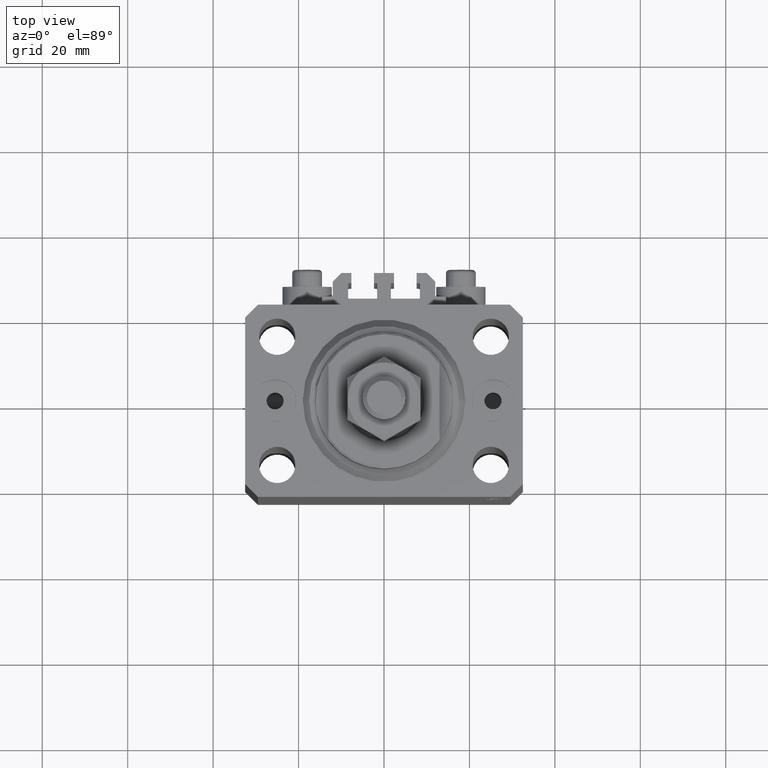
[diagram: clean part render]
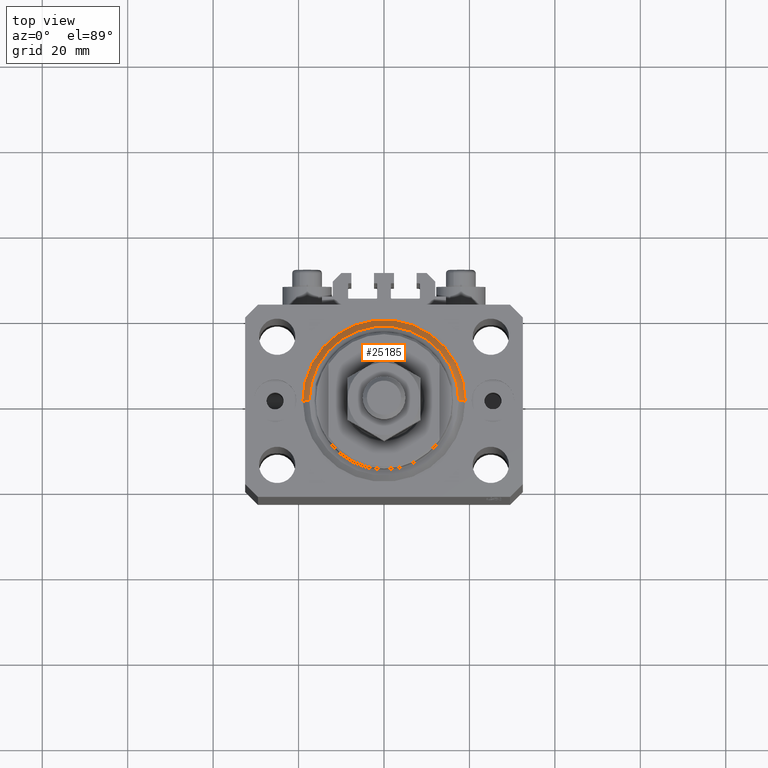
[diagram: same view with one face highlighted and labeled with its STEP entity id]
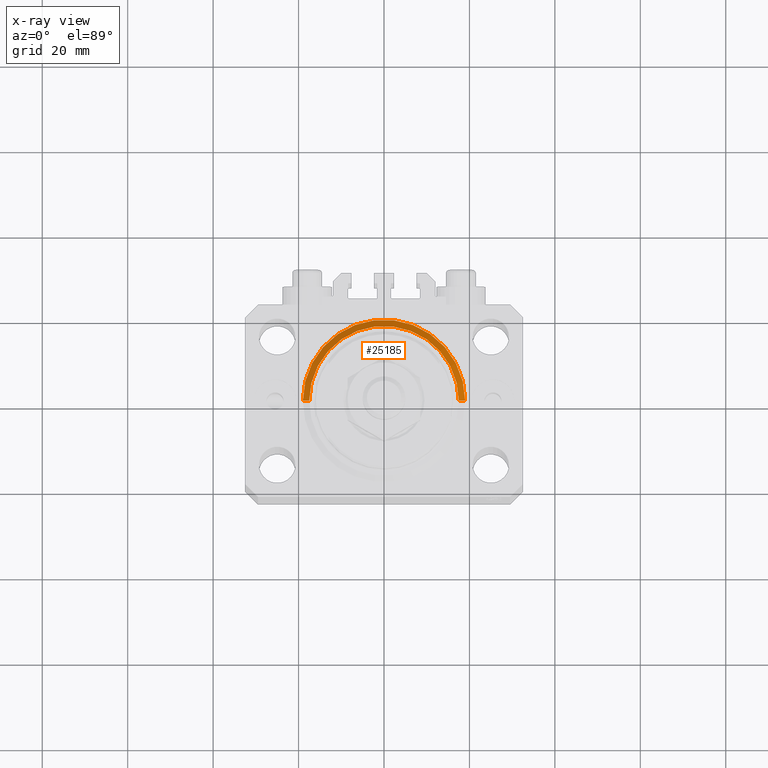
[diagram: x-ray of the same camera — body ghosted, the highlighted face saturated]
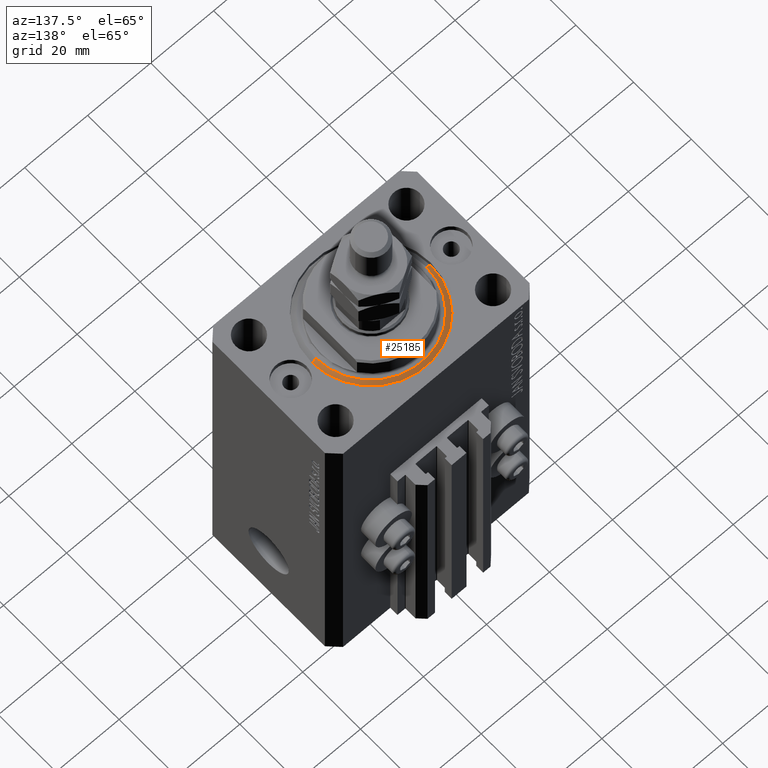
[diagram: same view with one face highlighted and labeled with its STEP entity id]
A machine part, top view. The second image highlights one B-rep face of the part: STEP entity #25185.
The next image is the same camera in x-ray: the body ghosted, the highlighted face saturated — about 0% of this face is hidden behind the body in this view.
A second angle (auxiliary view) of the same face is appended — the face is thin or edge-on in the first view.
In plain terms, the highlighted conical surface has half-angle 45 deg.
Its self-contained STEP definition (entity closure, byte-faithful):
#326 = VECTOR ( 'NONE', #10832, 1000.000000000000000 ) ;
#888 = CARTESIAN_POINT ( 'NONE',  ( 19.00000000000000000, 2.326828918379970970E-15, 1.500000000000001332 ) ) ;
#2772 = CIRCLE ( 'NONE', #35814, 19.00000000000000000 ) ;
#3706 = DIRECTION ( 'NONE',  ( -0.000000000000000000, -0.000000000000000000, 1.000000000000000000 ) ) ;
#4856 = AXIS2_PLACEMENT_3D ( 'NONE', #8139, #18989, #4918 ) ;
#4918 = DIRECTION ( 'NONE',  ( 1.000000000000000000, 0.000000000000000000, 0.000000000000000000 ) ) ;
#6474 = CONICAL_SURFACE ( 'NONE', #37220, 19.00000000000000000, 0.7853981633974492782 ) ;
#8139 = CARTESIAN_POINT ( 'NONE',  ( 0.000000000000000000, 0.000000000000000000, 0.000000000000000000 ) ) ;
#9676 = VERTEX_POINT ( 'NONE', #36853 ) ;
#10383 = DIRECTION ( 'NONE',  ( 1.000000000000000000, 0.000000000000000000, 0.000000000000000000 ) ) ;
#10587 = CARTESIAN_POINT ( 'NONE',  ( -19.00000000000000000, 2.326828918379970970E-15, 1.500000000000001332 ) ) ;
#10819 = ORIENTED_EDGE ( 'NONE', *, *, #48685, .F. ) ;
#10832 = DIRECTION ( 'NONE',  ( -0.7071067811865483499, 8.659560562354942719E-17, 0.7071067811865467956 ) ) ;
#18738 = DIRECTION ( 'NONE',  ( 1.000000000000000000, 0.000000000000000000, 0.000000000000000000 ) ) ;
#18989 = DIRECTION ( 'NONE',  ( -0.000000000000000000, -0.000000000000000000, -1.000000000000000000 ) ) ;
#19971 = ORIENTED_EDGE ( 'NONE', *, *, #30851, .F. ) ;
#20635 = ORIENTED_EDGE ( 'NONE', *, *, #48799, .F. ) ;
#21193 = CARTESIAN_POINT ( 'NONE',  ( -17.49999999999999645, 2.234980408443919215E-15, 0.000000000000000000 ) ) ;
#23688 = VERTEX_POINT ( 'NONE', #888 ) ;
#24716 = ORIENTED_EDGE ( 'NONE', *, *, #29157, .T. ) ;
#25185 = ADVANCED_FACE ( 'NONE', ( #37497 ), #6474, .T. ) ;
#25406 = VERTEX_POINT ( 'NONE', #21193 ) ;
#26643 = DIRECTION ( 'NONE',  ( 0.7071067811865483499, 0.000000000000000000, 0.7071067811865467956 ) ) ;
#27711 = VECTOR ( 'NONE', #26643, 1000.000000000000000 ) ;
#28838 = LINE ( 'NONE', #10587, #326 ) ;
#29119 = CARTESIAN_POINT ( 'NONE',  ( 0.000000000000000000, 0.000000000000000000, 1.500000000000001332 ) ) ;
#29157 = EDGE_CURVE ( 'NONE', #25406, #34570, #28838, .T. ) ;
#29243 = CARTESIAN_POINT ( 'NONE',  ( -19.00000000000000000, 0.000000000000000000, 1.500000000000001332 ) ) ;
#30835 = CIRCLE ( 'NONE', #4856, 17.49999999999999645 ) ;
#30851 = EDGE_CURVE ( 'NONE', #23688, #34570, #2772, .T. ) ;
#31756 = EDGE_LOOP ( 'NONE', ( #20635, #24716, #19971, #10819 ) ) ;
#34512 = LINE ( 'NONE', #38219, #27711 ) ;
#34570 = VERTEX_POINT ( 'NONE', #29243 ) ;
#35814 = AXIS2_PLACEMENT_3D ( 'NONE', #29119, #44161, #10383 ) ;
#36853 = CARTESIAN_POINT ( 'NONE',  ( 17.49999999999999645, 0.000000000000000000, 0.000000000000000000 ) ) ;
#37220 = AXIS2_PLACEMENT_3D ( 'NONE', #41186, #3706, #18738 ) ;
#37497 = FACE_OUTER_BOUND ( 'NONE', #31756, .T. ) ;
#38219 = CARTESIAN_POINT ( 'NONE',  ( 19.00000000000000000, 0.000000000000000000, 1.500000000000001332 ) ) ;
#41186 = CARTESIAN_POINT ( 'NONE',  ( 0.000000000000000000, 0.000000000000000000, 1.500000000000001332 ) ) ;
#44161 = DIRECTION ( 'NONE',  ( -0.000000000000000000, -0.000000000000000000, 1.000000000000000000 ) ) ;
#48685 = EDGE_CURVE ( 'NONE', #9676, #23688, #34512, .T. ) ;
#48799 = EDGE_CURVE ( 'NONE', #25406, #9676, #30835, .T. ) ;